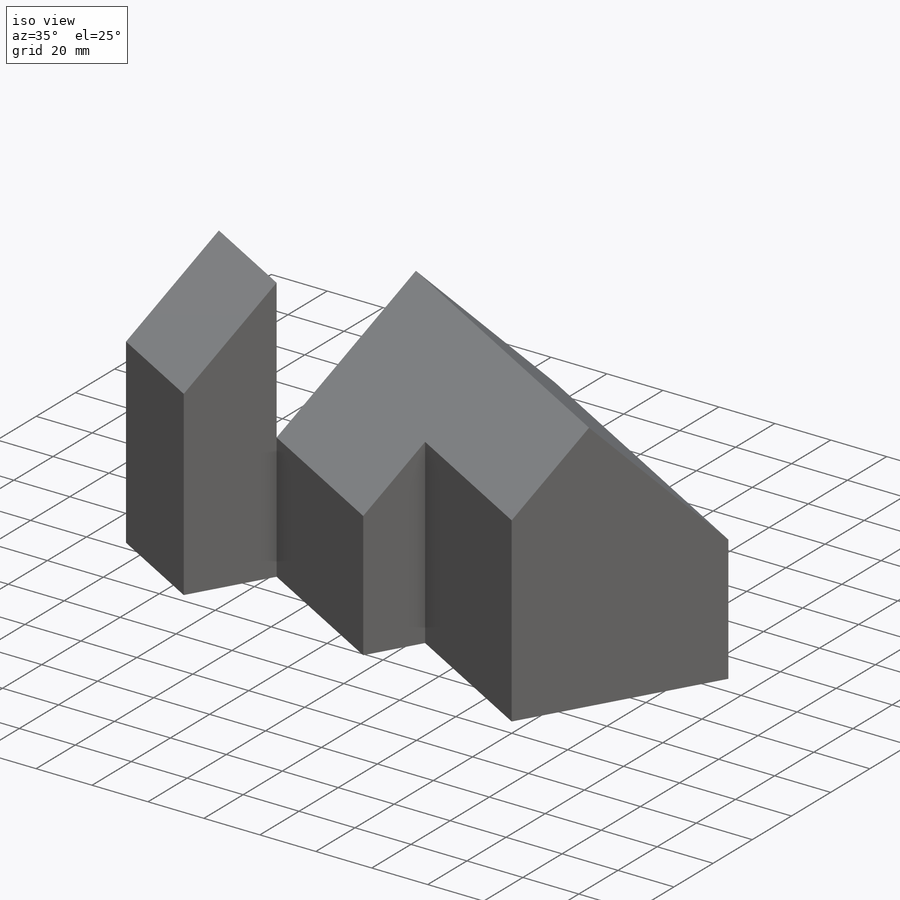
[diagram: iso view]
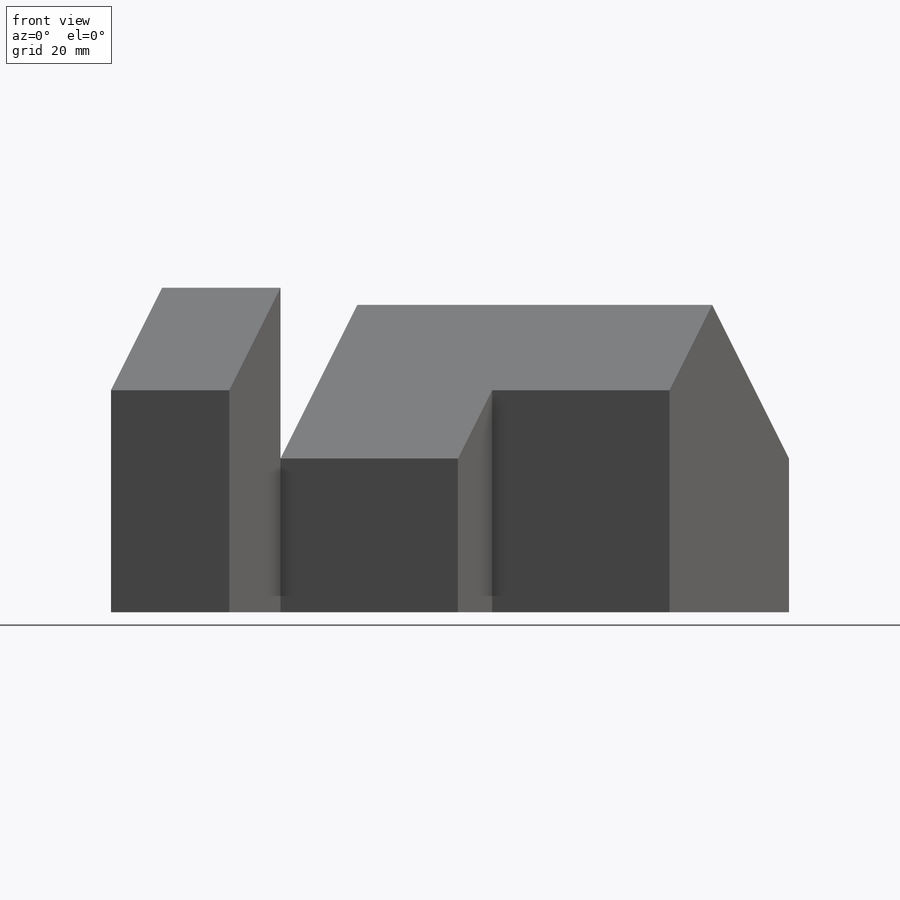
[diagram: front view]
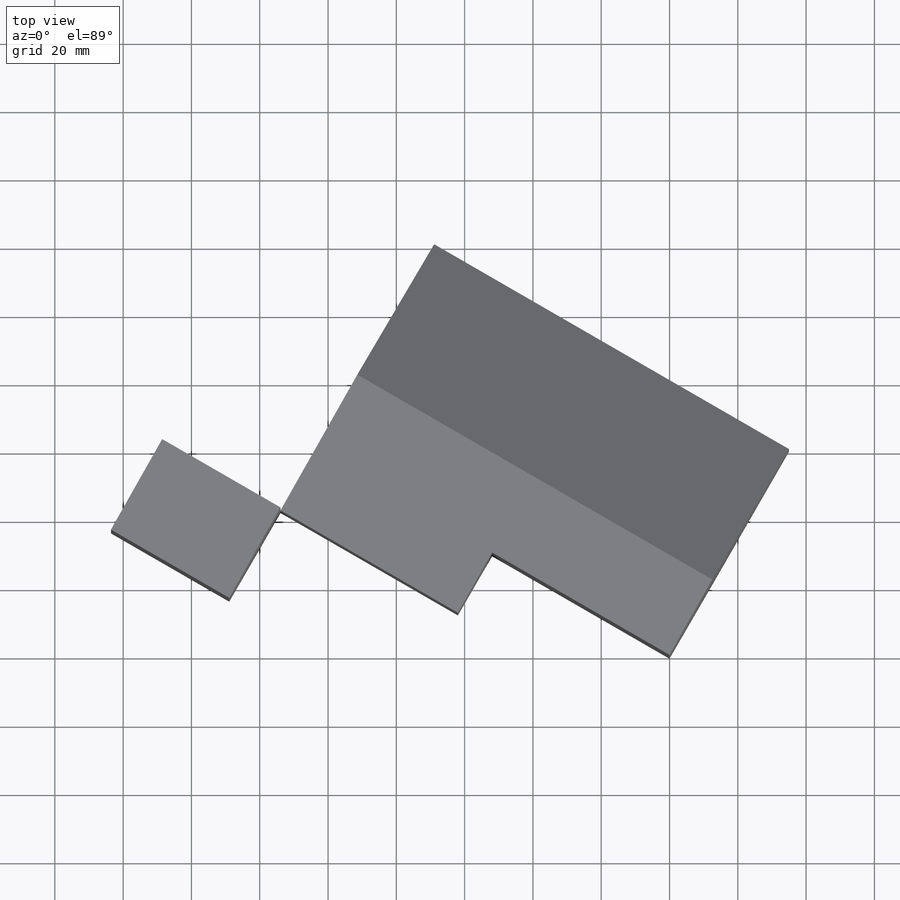
[diagram: top view]
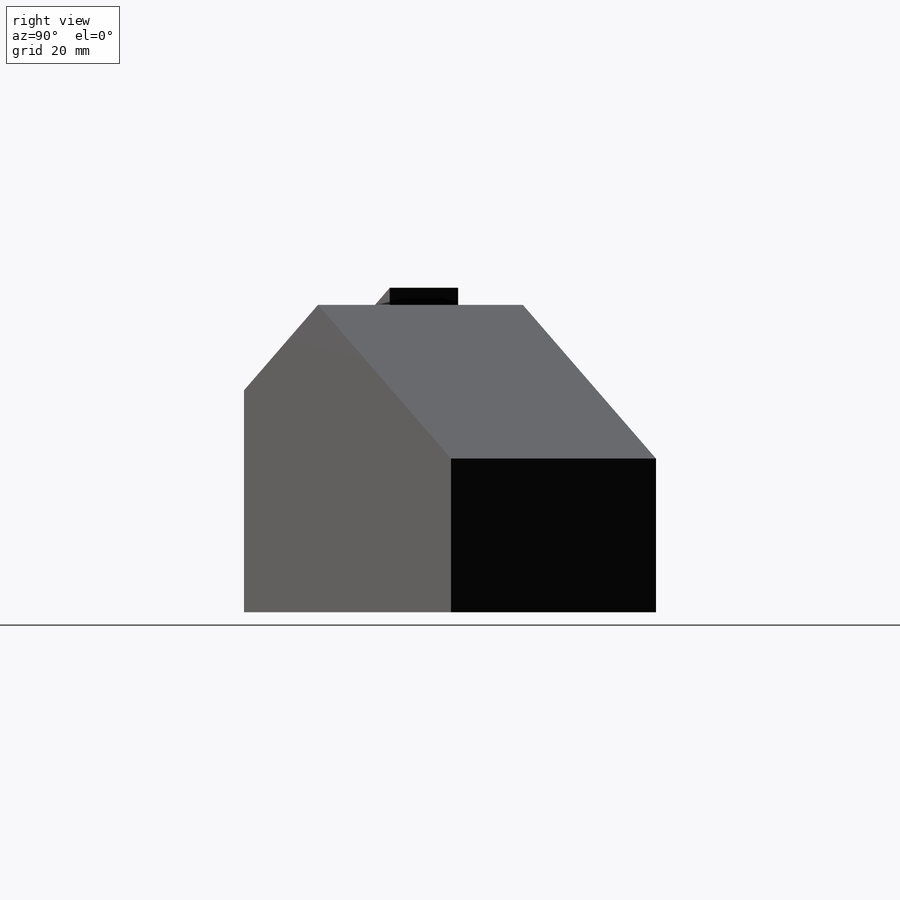
[diagram: right view]
SOLIDWORKS PART (.sldprt)
format: sldprt  version: not decoded by parser v0  size: 294,400 bytes
history: native  units: mm
features: sketch x3, cut_extrude x2, material x1, extrude x1 (+16 scaffold rows collapsed)
feature tree (23):
  scaffold x16  (default folders/planes/origin — collapsed)
  material  "Material <not specified>"
  sketch  "Sketch1"  dims[c1.D1=70.0mm c1.D2=60.0mm c1.D3=60.0mm c1.D4=20.0mm c1.D5=40.0mm c1.D6=30.0mm c1.D7=~54.372902mm c2.D7=60.0deg]
  extrude  "Extrude1"  Depth=95mm
  sketch  "Sketch2"  dims[D1=5.0mm D2=45.0mm D3=45.0mm D4=45.0mm]
  cut_extrude  "Extrude2"  Depth=125mm
  sketch  "Sketch3"  dims[D1=30.0mm]
  cut_extrude  "Extrude3"  Depth=125mm
decode coverage: 6 of 6 modeling features carry decoded parameters
note: ~ marks probable driven/reference dimensions
note: suppression state not decoded; provenance and decode notes live in map.json
